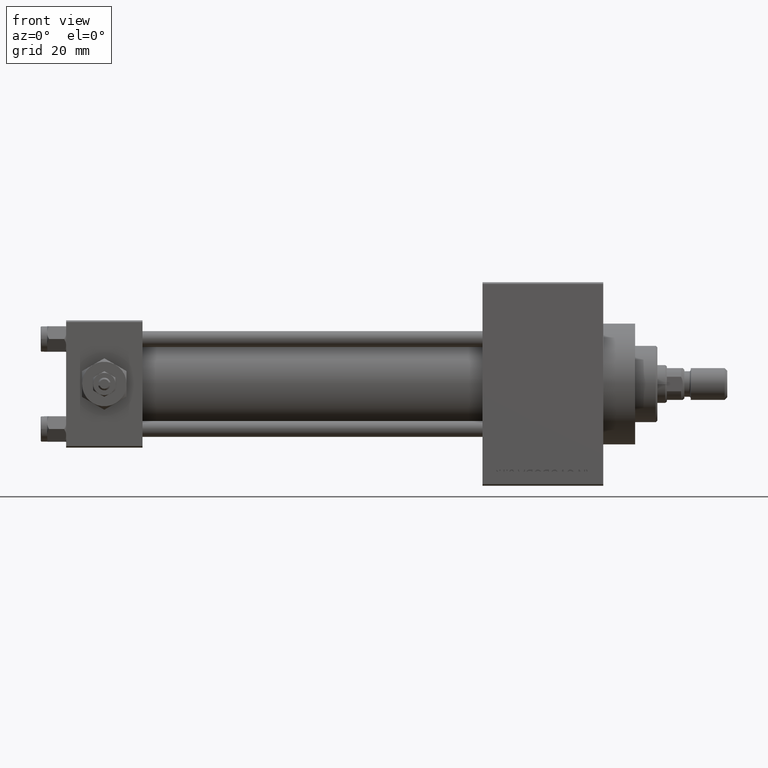
[diagram: clean part render]
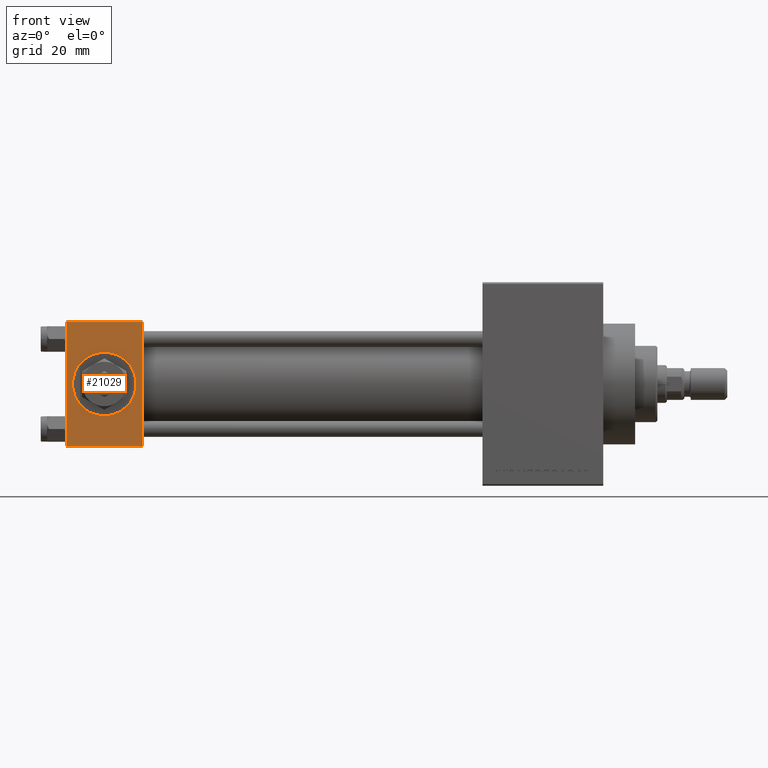
[diagram: same view with one face highlighted and labeled with its STEP entity id]
A machine part, front view. The second image highlights one B-rep face of the part: STEP entity #21029.
In plain terms, the highlighted planar face has unit normal (0, 1, 0).
Its self-contained STEP definition (entity closure, byte-faithful):
#730 = DIRECTION ( 'NONE',  ( 0.000000000000000000, -1.000000000000000000, -8.673617379884036705E-17 ) ) ;
#2212 = AXIS2_PLACEMENT_3D ( 'NONE', #27389, #730, #42559 ) ;
#5073 = AXIS2_PLACEMENT_3D ( 'NONE', #12548, #16284, #19527 ) ;
#8444 = VECTOR ( 'NONE', #25957, 1000.000000000000000 ) ;
#9608 = CARTESIAN_POINT ( 'NONE',  ( 24.00000000000000000, -20.00000000000000355, 19.49999999999998224 ) ) ;
#9692 = DIRECTION ( 'NONE',  ( 0.000000000000000000, 8.673617379884036705E-17, -1.000000000000000000 ) ) ;
#9782 = ORIENTED_EDGE ( 'NONE', *, *, #23743, .T. ) ;
#11223 = CARTESIAN_POINT ( 'NONE',  ( 24.00000000000000000, -20.00000000000000355, 19.49999999999998224 ) ) ;
#11519 = VERTEX_POINT ( 'NONE', #37624 ) ;
#11578 = EDGE_CURVE ( 'NONE', #39622, #21950, #22722, .T. ) ;
#12548 = CARTESIAN_POINT ( 'NONE',  ( 12.00000000000000000, -20.00000000000000355, -1.734723475976807883E-15 ) ) ;
#13222 = EDGE_LOOP ( 'NONE', ( #39467, #27236 ) ) ;
#13768 = FACE_BOUND ( 'NONE', #13222, .T. ) ;
#13917 = VERTEX_POINT ( 'NONE', #21347 ) ;
#14654 = CIRCLE ( 'NONE', #5073, 9.999999999999996447 ) ;
#16284 = DIRECTION ( 'NONE',  ( 0.000000000000000000, -1.000000000000000000, -8.673617379884036705E-17 ) ) ;
#17225 = ORIENTED_EDGE ( 'NONE', *, *, #40388, .F. ) ;
#17512 = DIRECTION ( 'NONE',  ( -0.000000000000000000, 1.000000000000000000, 8.673617379884036705E-17 ) ) ;
#17817 = VERTEX_POINT ( 'NONE', #11223 ) ;
#17926 = CARTESIAN_POINT ( 'NONE',  ( 24.00000000000000000, -20.00000000000000355, 19.99999999999998934 ) ) ;
#19527 = DIRECTION ( 'NONE',  ( 0.000000000000000000, 0.000000000000000000, -1.000000000000000000 ) ) ;
#19990 = EDGE_CURVE ( 'NONE', #48750, #13917, #14654, .T. ) ;
#21029 = ADVANCED_FACE ( 'NONE', ( #13768, #47584 ), #24724, .F. ) ;
#21161 = LINE ( 'NONE', #17926, #29417 ) ;
#21347 = CARTESIAN_POINT ( 'NONE',  ( 12.00000000000000000, -20.00000000000000355, -9.999999999999998224 ) ) ;
#21547 = CARTESIAN_POINT ( 'NONE',  ( 0.000000000000000000, -20.00000000000000355, 19.99999999999998934 ) ) ;
#21833 = VECTOR ( 'NONE', #36701, 1000.000000000000000 ) ;
#21950 = VERTEX_POINT ( 'NONE', #29540 ) ;
#21991 = CARTESIAN_POINT ( 'NONE',  ( 24.00000000000000000, -20.00000000000000000, -19.49999999999999645 ) ) ;
#22722 = LINE ( 'NONE', #21991, #8444 ) ;
#23159 = CARTESIAN_POINT ( 'NONE',  ( 12.00000000000000178, -20.00000000000000355, 9.999999999999994671 ) ) ;
#23743 = EDGE_CURVE ( 'NONE', #11519, #39622, #48389, .T. ) ;
#24724 = PLANE ( 'NONE',  #30450 ) ;
#25697 = CARTESIAN_POINT ( 'NONE',  ( 24.00000000000000000, -20.00000000000000355, 19.99999999999998934 ) ) ;
#25791 = ORIENTED_EDGE ( 'NONE', *, *, #11578, .T. ) ;
#25957 = DIRECTION ( 'NONE',  ( 1.000000000000000000, 0.000000000000000000, 0.000000000000000000 ) ) ;
#27236 = ORIENTED_EDGE ( 'NONE', *, *, #19990, .F. ) ;
#27389 = CARTESIAN_POINT ( 'NONE',  ( 12.00000000000000000, -20.00000000000000355, -1.734723475976807883E-15 ) ) ;
#29234 = EDGE_CURVE ( 'NONE', #17817, #11519, #40208, .T. ) ;
#29236 = CARTESIAN_POINT ( 'NONE',  ( 0.000000000000000000, -20.00000000000000000, -19.49999999999999645 ) ) ;
#29417 = VECTOR ( 'NONE', #9692, 1000.000000000000000 ) ;
#29540 = CARTESIAN_POINT ( 'NONE',  ( 24.00000000000000000, -20.00000000000000000, -19.49999999999999645 ) ) ;
#30450 = AXIS2_PLACEMENT_3D ( 'NONE', #25697, #17512, #39880 ) ;
#30578 = ORIENTED_EDGE ( 'NONE', *, *, #29234, .T. ) ;
#31638 = EDGE_CURVE ( 'NONE', #13917, #48750, #41157, .T. ) ;
#36407 = EDGE_LOOP ( 'NONE', ( #9782, #25791, #17225, #30578 ) ) ;
#36701 = DIRECTION ( 'NONE',  ( 0.000000000000000000, 8.673617379884036705E-17, -1.000000000000000000 ) ) ;
#37624 = CARTESIAN_POINT ( 'NONE',  ( 0.000000000000000000, -20.00000000000000355, 19.49999999999998224 ) ) ;
#37860 = VECTOR ( 'NONE', #43448, 1000.000000000000000 ) ;
#39467 = ORIENTED_EDGE ( 'NONE', *, *, #31638, .F. ) ;
#39622 = VERTEX_POINT ( 'NONE', #29236 ) ;
#39880 = DIRECTION ( 'NONE',  ( 0.000000000000000000, -8.673617379884036705E-17, 1.000000000000000000 ) ) ;
#40208 = LINE ( 'NONE', #9608, #37860 ) ;
#40388 = EDGE_CURVE ( 'NONE', #17817, #21950, #21161, .T. ) ;
#41157 = CIRCLE ( 'NONE', #2212, 9.999999999999996447 ) ;
#42559 = DIRECTION ( 'NONE',  ( 0.000000000000000000, 0.000000000000000000, -1.000000000000000000 ) ) ;
#43448 = DIRECTION ( 'NONE',  ( -1.000000000000000000, 0.000000000000000000, 0.000000000000000000 ) ) ;
#47584 = FACE_OUTER_BOUND ( 'NONE', #36407, .T. ) ;
#48389 = LINE ( 'NONE', #21547, #21833 ) ;
#48750 = VERTEX_POINT ( 'NONE', #23159 ) ;